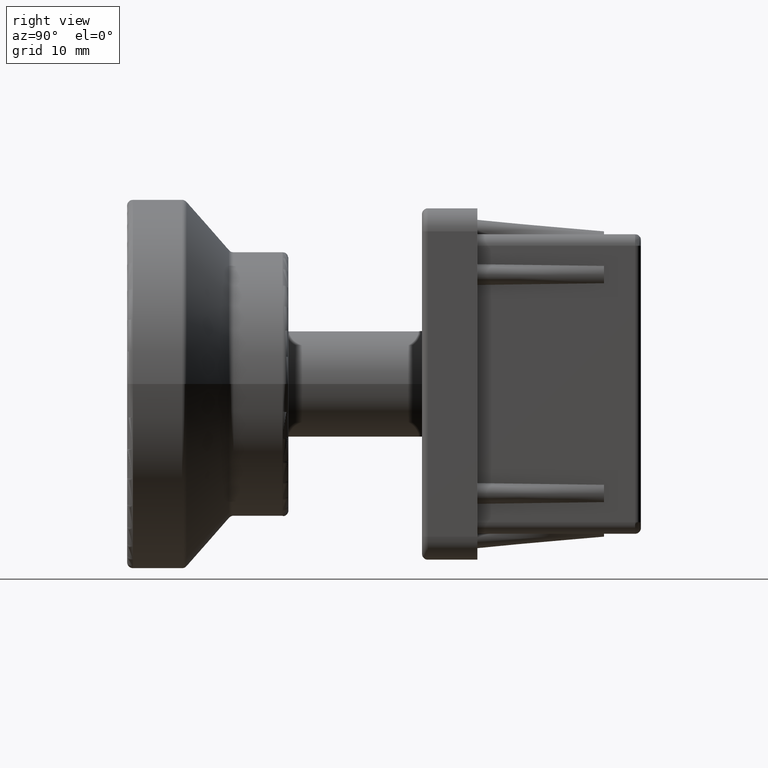
[diagram: clean part render]
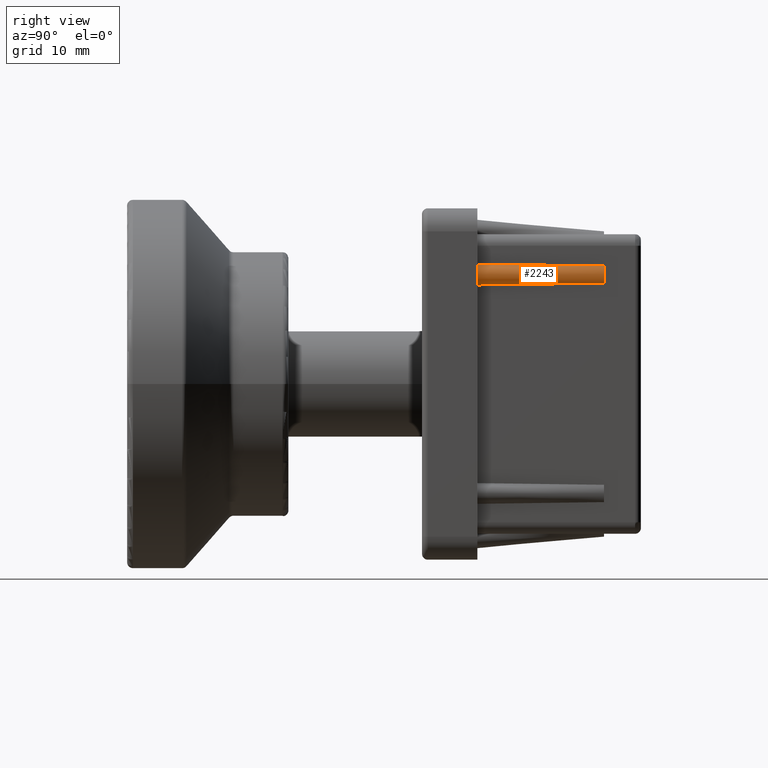
[diagram: same view with one face highlighted and labeled with its STEP entity id]
A machine part, right view. The second image highlights one B-rep face of the part: STEP entity #2243.
In plain terms, the highlighted face is a freeform B-spline surface patch.
Its self-contained STEP definition (entity closure, byte-faithful):
#24=B_SPLINE_SURFACE_WITH_KNOTS('',3,3,((#4183,#4184,#4185,#4186),(#4187,
#4188,#4189,#4190),(#4191,#4192,#4193,#4194),(#4195,#4196,#4197,#4198),
(#4199,#4200,#4201,#4202),(#4203,#4204,#4205,#4206),(#4207,#4208,#4209,
#4210)),.UNSPECIFIED.,.F.,.F.,.F.,(4,1,1,1,4),(4,4),(0.,0.285714285714286,
0.571428571428571,0.785714285714286,1.),(0.,1.),.UNSPECIFIED.);
#172=CIRCLE('',#2479,1.25);
#372=FACE_OUTER_BOUND('',#528,.T.);
#528=EDGE_LOOP('',(#1963,#1964,#1965,#1966));
#670=LINE('',#3788,#842);
#672=LINE('',#3792,#844);
#842=VECTOR('',#2929,11.001022679733);
#844=VECTOR('',#2931,11.001022679733);
#930=B_SPLINE_CURVE_WITH_KNOTS('',3,(#3941,#3942,#3943,#3944,#3945,#3946,
#3947),.UNSPECIFIED.,.F.,.F.,(4,1,1,1,4),(-1.,-0.785714285714286,-0.571428571428571,
-0.285714285714286,0.),.UNSPECIFIED.);
#1073=VERTEX_POINT('',#3785);
#1074=VERTEX_POINT('',#3787);
#1075=VERTEX_POINT('',#3789);
#1076=VERTEX_POINT('',#3791);
#1338=EDGE_CURVE('',#1073,#1074,#670,.T.);
#1340=EDGE_CURVE('',#1075,#1076,#672,.T.);
#1401=EDGE_CURVE('',#1076,#1073,#930,.T.);
#1413=EDGE_CURVE('',#1074,#1075,#172,.T.);
#1963=ORIENTED_EDGE('',*,*,#1401,.F.);
#1964=ORIENTED_EDGE('',*,*,#1340,.F.);
#1965=ORIENTED_EDGE('',*,*,#1413,.F.);
#1966=ORIENTED_EDGE('',*,*,#1338,.F.);
#2243=ADVANCED_FACE('',(#372),#24,.T.);
#2479=AXIS2_PLACEMENT_3D('',#4182,#3076,#3077);
#2929=DIRECTION('',(0.,-0.999907037757963,0.0136350959694271));
#2931=DIRECTION('',(0.,0.999907037757963,0.0136350959694266));
#3076=DIRECTION('center_axis',(0.,-1.,0.));
#3077=DIRECTION('ref_axis',(-0.800000000000001,0.,0.599999999999998));
#3785=CARTESIAN_POINT('',(26.,14.2,-10.4));
#3787=CARTESIAN_POINT('',(26.,3.2,-10.25));
#3788=CARTESIAN_POINT('',(26.,14.2,-10.4));
#3789=CARTESIAN_POINT('',(26.,3.2,-8.74999999999999));
#3791=CARTESIAN_POINT('',(26.,14.2,-8.6));
#3792=CARTESIAN_POINT('',(26.,14.2,-8.6));
#3941=CARTESIAN_POINT('Ctrl Pts',(26.,14.2,-8.6));
#3942=CARTESIAN_POINT('Ctrl Pts',(26.1786469853077,14.2,-8.63275194730641));
#3943=CARTESIAN_POINT('Ctrl Pts',(26.5149660474734,14.2,-8.80763465879428));
#3944=CARTESIAN_POINT('Ctrl Pts',(26.8180525947582,14.2,-9.36421005091823));
#3945=CARTESIAN_POINT('Ctrl Pts',(26.676723764032,14.2,-10.0693566016231));
#3946=CARTESIAN_POINT('Ctrl Pts',(26.2381959804103,14.2,-10.3563307369248));
#3947=CARTESIAN_POINT('Ctrl Pts',(26.,14.2,-10.4));
#4182=CARTESIAN_POINT('Origin',(25.,3.2,-9.5));
#4183=CARTESIAN_POINT('Ctrl Pts',(26.,14.2,-10.4));
#4184=CARTESIAN_POINT('Ctrl Pts',(26.,10.5333333333333,-10.35));
#4185=CARTESIAN_POINT('Ctrl Pts',(26.,6.86666666666667,-10.3));
#4186=CARTESIAN_POINT('Ctrl Pts',(26.,3.2,-10.25));
#4187=CARTESIAN_POINT('Ctrl Pts',(26.2381959804103,14.2,-10.3563307369248));
#4188=CARTESIAN_POINT('Ctrl Pts',(26.1896626953035,10.5333333333333,-10.2794303066945));
#4189=CARTESIAN_POINT('Ctrl Pts',(26.1404620149345,6.86666666666666,-10.2043287904601));
#4190=CARTESIAN_POINT('Ctrl Pts',(26.0919287298276,3.2,-10.1274283602298));
#4191=CARTESIAN_POINT('Ctrl Pts',(26.676723764032,14.2,-10.0693566016231));
#4192=CARTESIAN_POINT('Ctrl Pts',(26.5276362239852,10.5333333333333,-9.99559728660829));
#4193=CARTESIAN_POINT('Ctrl Pts',(26.3792700642919,6.86666666666668,-9.92187589505771));
#4194=CARTESIAN_POINT('Ctrl Pts',(26.2301825242452,3.2,-9.84811658004284));
#4195=CARTESIAN_POINT('Ctrl Pts',(26.8180525947582,14.2,-9.36421005091823));
#4196=CARTESIAN_POINT('Ctrl Pts',(26.6351444414664,10.5333333333333,-9.38320809942433));
#4197=CARTESIAN_POINT('Ctrl Pts',(26.4523794277944,6.86666666666666,-9.40244024408834));
#4198=CARTESIAN_POINT('Ctrl Pts',(26.2694712745026,3.2,-9.42143829259444));
#4199=CARTESIAN_POINT('Ctrl Pts',(26.5149660474734,14.2,-8.80763465879428));
#4200=CARTESIAN_POINT('Ctrl Pts',(26.4038032097422,10.5333333333333,-8.88675834311996));
#4201=CARTESIAN_POINT('Ctrl Pts',(26.2924438595012,6.86666666666668,-8.9657864773618));
#4202=CARTESIAN_POINT('Ctrl Pts',(26.18128102177,3.2,-9.04491016168748));
#4203=CARTESIAN_POINT('Ctrl Pts',(26.1786469853077,14.2,-8.63275194730641));
#4204=CARTESIAN_POINT('Ctrl Pts',(26.1419431307247,10.5333333333333,-8.70255536753765));
#4205=CARTESIAN_POINT('Ctrl Pts',(26.1056504019537,6.86666666666666,-8.77212530959637));
#4206=CARTESIAN_POINT('Ctrl Pts',(26.0689465473707,3.2,-8.84192872982761));
#4207=CARTESIAN_POINT('Ctrl Pts',(26.,14.2,-8.6));
#4208=CARTESIAN_POINT('Ctrl Pts',(26.,10.5333333333333,-8.65));
#4209=CARTESIAN_POINT('Ctrl Pts',(26.,6.86666666666667,-8.7));
#4210=CARTESIAN_POINT('Ctrl Pts',(26.,3.2,-8.75));